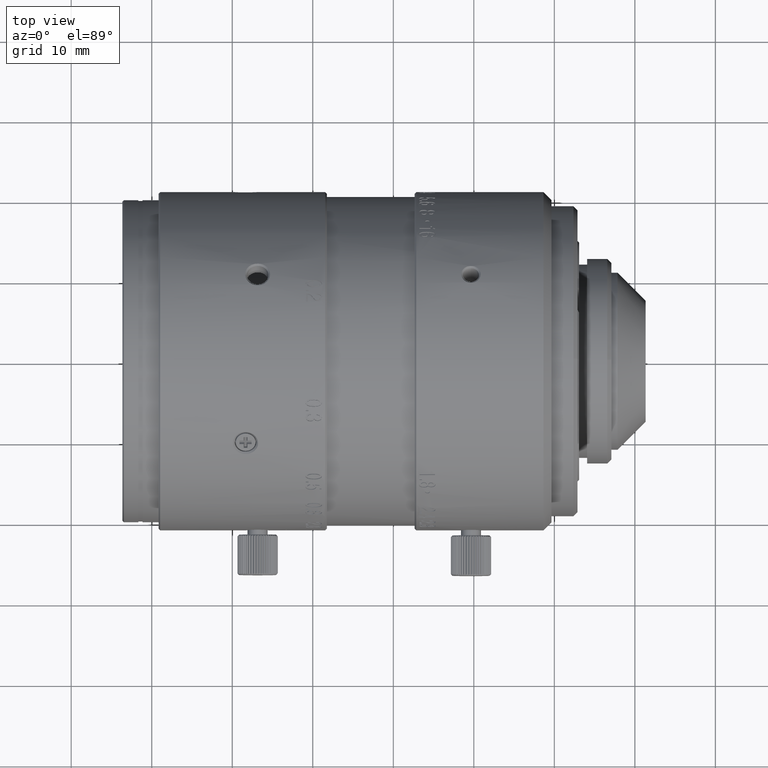
[diagram: clean part render]
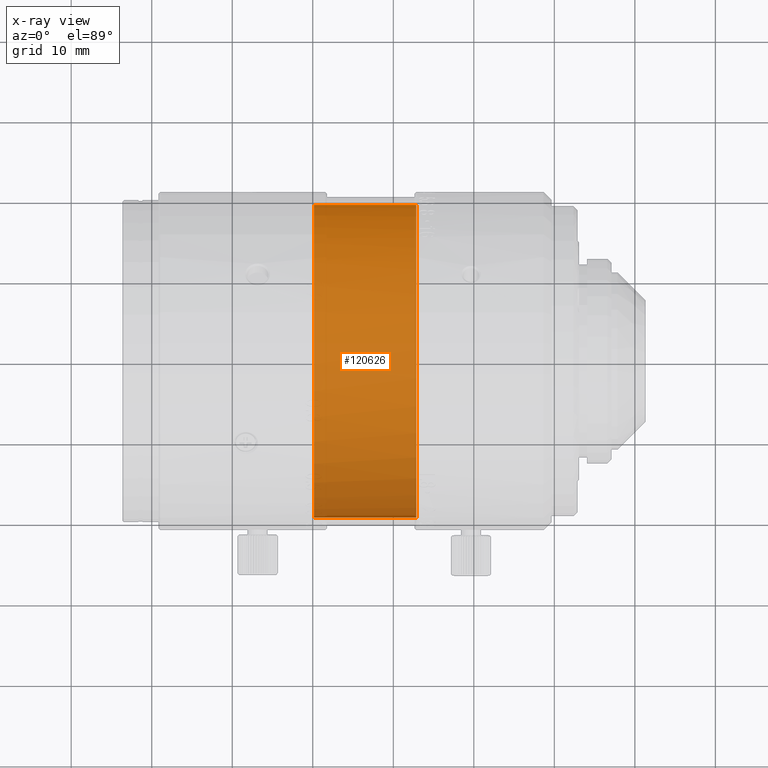
[diagram: x-ray — body ghosted, one internal face saturated and labeled with its STEP entity id]
A machine part, top view, then the same camera in x-ray: the body is ghosted and one INTERNAL B-rep face — a face not visible from any outside direction — is saturated and labeled: STEP entity #120626.
In plain terms, the highlighted cylindrical surface (partial cylindrical patch) has radius 19.4 mm, axis along (1, 0, 0).
Its self-contained STEP definition (entity closure, byte-faithful):
#1699 = CARTESIAN_POINT ( 'NONE',  ( -37.25099999999999767, -19.40000000000000213, 0.000000000000000000 ) ) ;
#3959 = CARTESIAN_POINT ( 'NONE',  ( -49.95100000000000051, 0.000000000000000000, 0.000000000000000000 ) ) ;
#4682 = CARTESIAN_POINT ( 'NONE',  ( -49.95100000000000051, 0.000000000000000000, -19.40000000000000213 ) ) ;
#4772 = EDGE_CURVE ( 'NONE', #85719, #69350, #89923, .T. ) ;
#6535 = DIRECTION ( 'NONE',  ( 1.000000000000000000, 0.000000000000000000, 0.000000000000000000 ) ) ;
#9794 = DIRECTION ( 'NONE',  ( 0.000000000000000000, 1.000000000000000000, -1.717438447720999954E-11 ) ) ;
#10103 = VECTOR ( 'NONE', #26269, 1000.000000000000000 ) ;
#18515 = DIRECTION ( 'NONE',  ( -1.000000000000000000, 0.000000000000000000, 0.000000000000000000 ) ) ;
#25260 = DIRECTION ( 'NONE',  ( 0.000000000000000000, -1.000000000000000000, 0.000000000000000000 ) ) ;
#25503 = ORIENTED_EDGE ( 'NONE', *, *, #56645, .T. ) ;
#26269 = DIRECTION ( 'NONE',  ( -1.000000000000000000, 0.000000000000000000, -2.625463349409999774E-11 ) ) ;
#27048 = ORIENTED_EDGE ( 'NONE', *, *, #47884, .T. ) ;
#28692 = ORIENTED_EDGE ( 'NONE', *, *, #79073, .T. ) ;
#31044 = CARTESIAN_POINT ( 'NONE',  ( -37.25099999999999767, 19.40000000000000213, 0.000000000000000000 ) ) ;
#35649 = CARTESIAN_POINT ( 'NONE',  ( -37.25099999999999767, 19.40000000000000213, -2.221220392386000138E-10 ) ) ;
#38220 = CYLINDRICAL_SURFACE ( 'NONE', #87289, 19.40000000000000213 ) ;
#39256 = AXIS2_PLACEMENT_3D ( 'NONE', #79235, #18515, #9794 ) ;
#39845 = CARTESIAN_POINT ( 'NONE',  ( -37.25099999999999767, -19.40000000000000213, 0.000000000000000000 ) ) ;
#41364 = CIRCLE ( 'NONE', #39256, 19.40000000000000213 ) ;
#47884 = EDGE_CURVE ( 'NONE', #99079, #117415, #110202, .T. ) ;
#56645 = EDGE_CURVE ( 'NONE', #85719, #99079, #110838, .T. ) ;
#56696 = VECTOR ( 'NONE', #120695, 1000.000000000000000 ) ;
#59943 = EDGE_LOOP ( 'NONE', ( #109320, #25503, #27048, #100360, #28692 ) ) ;
#63963 = AXIS2_PLACEMENT_3D ( 'NONE', #96059, #6535, #25260 ) ;
#68925 = DIRECTION ( 'NONE',  ( 1.000000000000000000, 0.000000000000000000, 0.000000000000000000 ) ) ;
#69350 = VERTEX_POINT ( 'NONE', #112806 ) ;
#71945 = AXIS2_PLACEMENT_3D ( 'NONE', #3959, #75379, #105250 ) ;
#75379 = DIRECTION ( 'NONE',  ( -1.000000000000000000, 0.000000000000000000, 0.000000000000000000 ) ) ;
#78939 = CARTESIAN_POINT ( 'NONE',  ( -51.00099999999999767, 0.000000000000000000, 0.000000000000000000 ) ) ;
#79073 = EDGE_CURVE ( 'NONE', #100447, #69350, #41364, .T. ) ;
#79235 = CARTESIAN_POINT ( 'NONE',  ( -49.95100000000000051, 0.000000000000000000, 0.000000000000000000 ) ) ;
#85719 = VERTEX_POINT ( 'NONE', #1699 ) ;
#87289 = AXIS2_PLACEMENT_3D ( 'NONE', #78939, #68925, #119742 ) ;
#89923 = LINE ( 'NONE', #39845, #56696 ) ;
#95102 = CARTESIAN_POINT ( 'NONE',  ( -49.95100000000000051, 19.40000000000000213, -3.331830588579000078E-10 ) ) ;
#96059 = CARTESIAN_POINT ( 'NONE',  ( -37.25099999999999767, 0.000000000000000000, 0.000000000000000000 ) ) ;
#99010 = FACE_OUTER_BOUND ( 'NONE', #59943, .T. ) ;
#99079 = VERTEX_POINT ( 'NONE', #31044 ) ;
#100360 = ORIENTED_EDGE ( 'NONE', *, *, #115430, .T. ) ;
#100447 = VERTEX_POINT ( 'NONE', #4682 ) ;
#104032 = CIRCLE ( 'NONE', #71945, 19.40000000000000213 ) ;
#105250 = DIRECTION ( 'NONE',  ( 0.000000000000000000, 1.000000000000000000, -1.717438447720999954E-11 ) ) ;
#109320 = ORIENTED_EDGE ( 'NONE', *, *, #4772, .F. ) ;
#110202 = LINE ( 'NONE', #35649, #10103 ) ;
#110838 = CIRCLE ( 'NONE', #63963, 19.40000000000000213 ) ;
#112806 = CARTESIAN_POINT ( 'NONE',  ( -49.95100000000000051, -19.40000000000000213, 0.000000000000000000 ) ) ;
#115430 = EDGE_CURVE ( 'NONE', #117415, #100447, #104032, .T. ) ;
#117415 = VERTEX_POINT ( 'NONE', #95102 ) ;
#119742 = DIRECTION ( 'NONE',  ( 0.000000000000000000, -1.000000000000000000, 0.000000000000000000 ) ) ;
#120626 = ADVANCED_FACE ( 'NONE', ( #99010 ), #38220, .F. ) ;
#120695 = DIRECTION ( 'NONE',  ( -1.000000000000000000, 0.000000000000000000, 3.062742252324999542E-11 ) ) ;